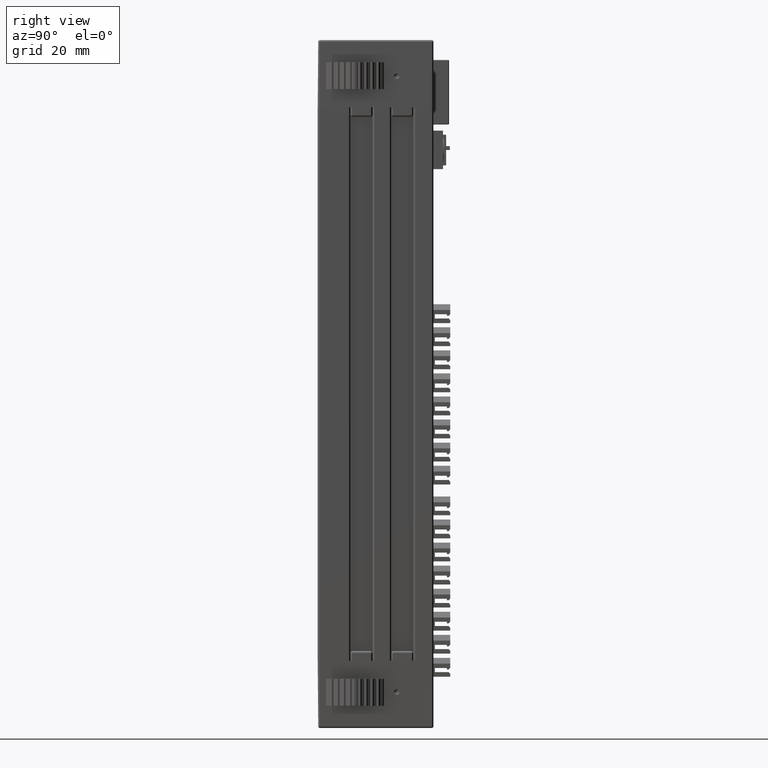
[diagram: clean part render]
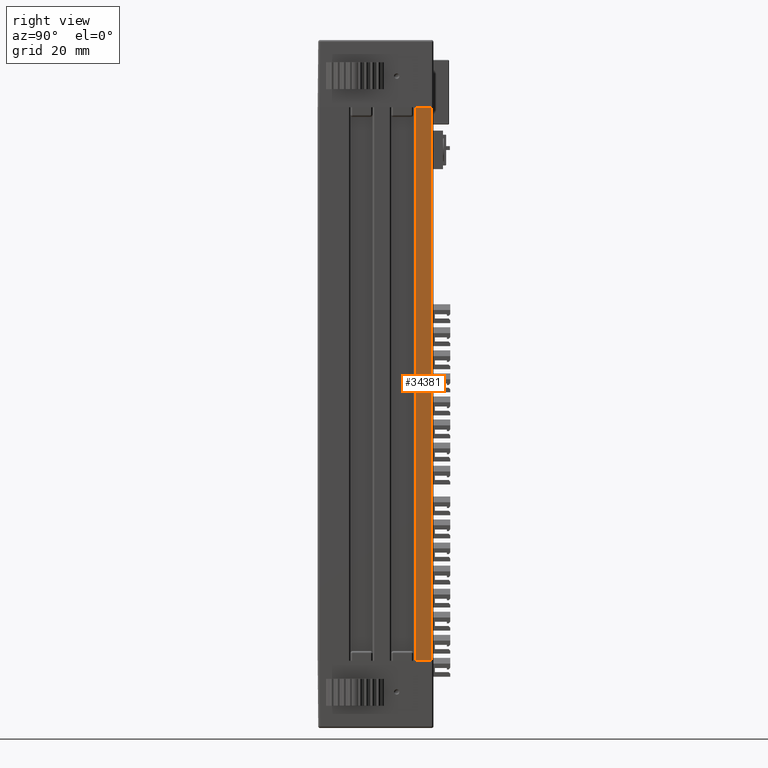
[diagram: same view with one face highlighted and labeled with its STEP entity id]
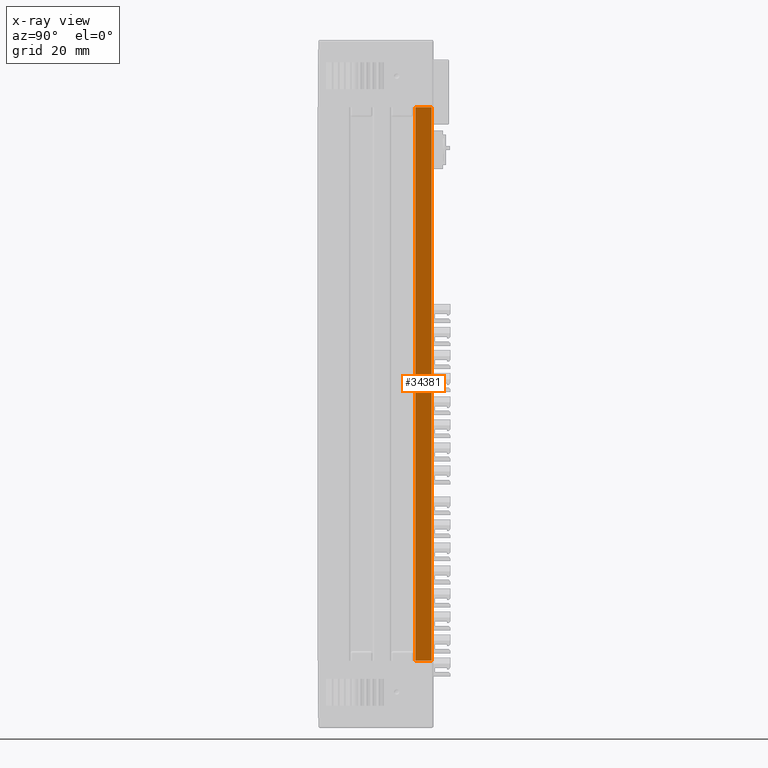
[diagram: x-ray of the same camera — body ghosted, the highlighted face saturated]
A machine part, right view. The second image highlights one B-rep face of the part: STEP entity #34381.
The next image is the same camera in x-ray: the body ghosted, the highlighted face saturated — about 0% of this face is hidden behind the body in this view.
In plain terms, the highlighted planar face has unit normal (1, 0, 0).
Its self-contained STEP definition (entity closure, byte-faithful):
#4496 = VERTEX_POINT ( 'NONE', #14479 ) ;
#4604 = VERTEX_POINT ( 'NONE', #15387 ) ;
#4663 = VERTEX_POINT ( 'NONE', #15428 ) ;
#4720 = VERTEX_POINT ( 'NONE', #15466 ) ;
#14479 = CARTESIAN_POINT ( 'NONE',  ( 25.00000000000000000, -4.700000000000000200, -109.4999999999999900 ) ) ;
#15387 = CARTESIAN_POINT ( 'NONE',  ( 25.00000000000000000, -4.700000000000000200, 34.50000000000000000 ) ) ;
#15428 = CARTESIAN_POINT ( 'NONE',  ( 25.00000000000000000, -0.4999999999999997800, -109.4999999999999900 ) ) ;
#15466 = CARTESIAN_POINT ( 'NONE',  ( 25.00000000000000000, -0.4999999999999997800, 34.50000000000000000 ) ) ;
#17298 = EDGE_CURVE ( 'NONE', #4496, #4663, #26493, .T. ) ;
#17299 = EDGE_CURVE ( 'NONE', #4604, #4720, #26496, .T. ) ;
#17300 = EDGE_CURVE ( 'NONE', #4496, #4604, #26499, .T. ) ;
#17303 = EDGE_CURVE ( 'NONE', #4663, #4720, #26508, .T. ) ;
#20697 = ORIENTED_EDGE ( 'NONE', *, *, #17303, .T. ) ;
#20699 = ORIENTED_EDGE ( 'NONE', *, *, #17300, .F. ) ;
#20701 = ORIENTED_EDGE ( 'NONE', *, *, #17298, .T. ) ;
#20703 = ORIENTED_EDGE ( 'NONE', *, *, #17299, .F. ) ;
#26099 = VECTOR ( 'NONE', #26495, 1000.000000000000000 ) ;
#26100 = VECTOR ( 'NONE', #26498, 1000.000000000000000 ) ;
#26101 = VECTOR ( 'NONE', #26501, 1000.000000000000000 ) ;
#26103 = VECTOR ( 'NONE', #26510, 1000.000000000000000 ) ;
#26493 = LINE ( 'NONE', #26494, #26099 ) ;
#26494 = CARTESIAN_POINT ( 'NONE',  ( 25.00000000000000000, -4.700000000000000200, -109.4999999999999900 ) ) ;
#26495 = DIRECTION ( 'NONE',  ( 0.0000000000000000000, 1.000000000000000000, 0.0000000000000000000 ) ) ;
#26496 = LINE ( 'NONE', #26497, #26100 ) ;
#26497 = CARTESIAN_POINT ( 'NONE',  ( 25.00000000000000000, -4.700000000000000200, 34.50000000000000000 ) ) ;
#26498 = DIRECTION ( 'NONE',  ( 0.0000000000000000000, 1.000000000000000000, 0.0000000000000000000 ) ) ;
#26499 = LINE ( 'NONE', #26500, #26101 ) ;
#26500 = CARTESIAN_POINT ( 'NONE',  ( 25.00000000000000000, -4.700000000000000200, -109.4999999999999900 ) ) ;
#26501 = DIRECTION ( 'NONE',  ( 0.0000000000000000000, 0.0000000000000000000, 1.000000000000000000 ) ) ;
#26508 = LINE ( 'NONE', #26509, #26103 ) ;
#26509 = CARTESIAN_POINT ( 'NONE',  ( 25.00000000000000000, -0.4999999999999997800, -109.4999999999999900 ) ) ;
#26510 = DIRECTION ( 'NONE',  ( 0.0000000000000000000, 0.0000000000000000000, 1.000000000000000000 ) ) ;
#28778 = FACE_OUTER_BOUND ( 'NONE', #34684, .T. ) ;
#28783 = AXIS2_PLACEMENT_3D ( 'NONE', #36259, #36260, #36261 ) ;
#34381 = ADVANCED_FACE ( 'NONE', ( #28778 ), #36258, .T. ) ;
#34684 = EDGE_LOOP ( 'NONE', ( #20703, #20699, #20701, #20697 ) ) ;
#36258 = PLANE ( 'NONE',  #28783 ) ;
#36259 = CARTESIAN_POINT ( 'NONE',  ( 25.00000000000000000, -4.700000000000000200, -109.4999999999999900 ) ) ;
#36260 = DIRECTION ( 'NONE',  ( 1.000000000000000000, 0.0000000000000000000, 0.0000000000000000000 ) ) ;
#36261 = DIRECTION ( 'NONE',  ( 0.0000000000000000000, 0.0000000000000000000, -1.000000000000000000 ) ) ;